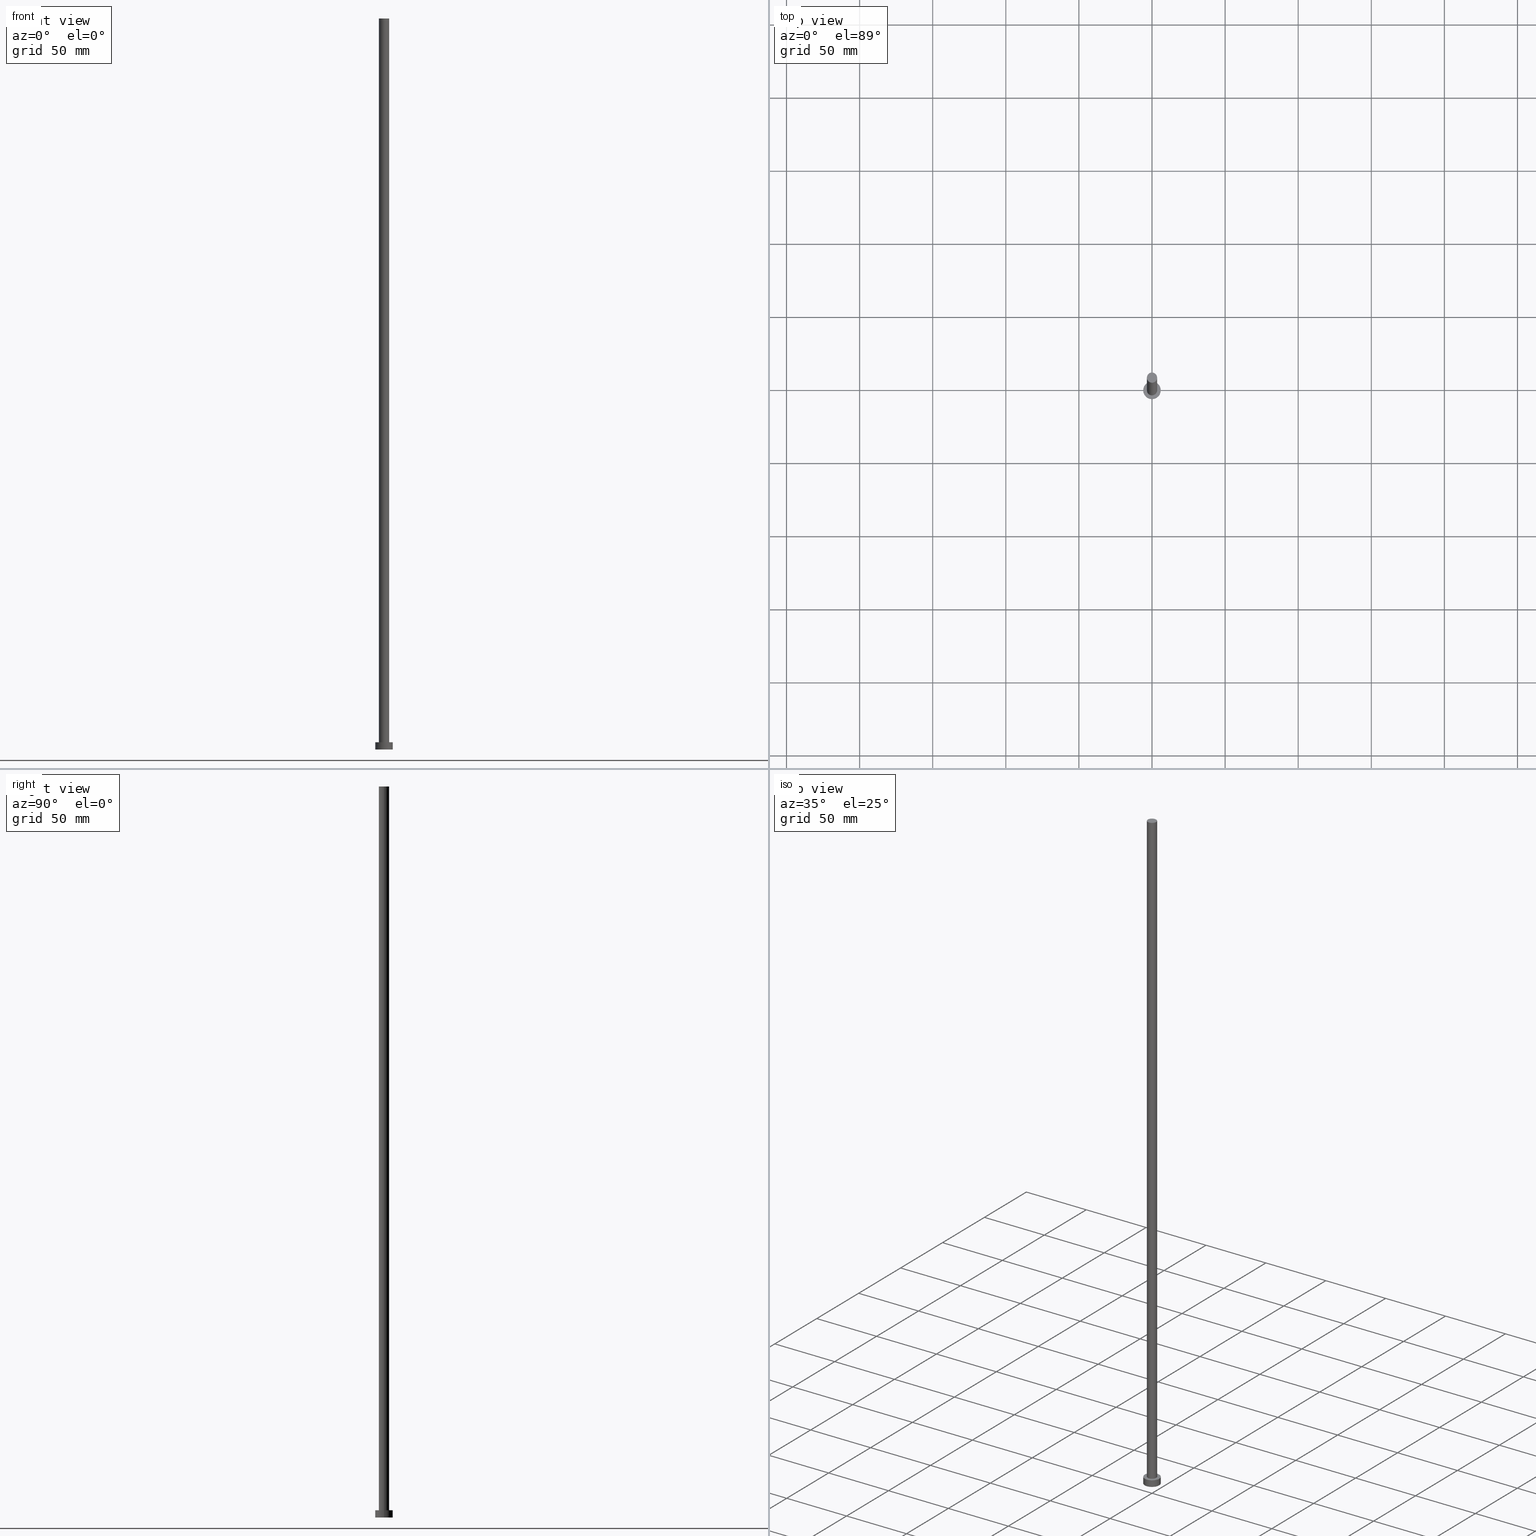
[diagram: canonical four-view strip — front | top / right | iso, engineering-drawing reading convention]
A machine part, canonical four-view strip (front | top / right | iso — engineering-drawing reading convention). The complete STEP part file that produces these views, byte-faithful:
ISO-10303-21;
HEADER;
FILE_DESCRIPTION (( 'STEP AP203' ),
    '1' );
FILE_NAME ('3daa.STEP',
    '2023-02-13T14:48:27',
    ( '' ),
    ( '' ),
    'SwSTEP 2.0',
    'SolidWorks 2019',
    '' );
FILE_SCHEMA (( 'CONFIG_CONTROL_DESIGN' ));
ENDSEC;

DATA;
#1 = ORIENTED_EDGE ( 'NONE', *, *, #191, .T. ) ;
#2 = CC_DESIGN_DATE_AND_TIME_ASSIGNMENT ( #100, #175, ( #127 ) ) ;
#3 = CIRCLE ( 'NONE', #196, 3.500000000000000000 ) ;
#4 = FACE_OUTER_BOUND ( 'NONE', #165, .T. ) ;
#5 = APPROVAL_ROLE ( '' ) ;
#6 = CARTESIAN_POINT ( 'NONE',  ( 6.000000000000000888, 7.347880794884120722E-16, 5.000000000000000000 ) ) ;
#7 = ORIENTED_EDGE ( 'NONE', *, *, #174, .F. ) ;
#8 = DIRECTION ( 'NONE',  ( 0.000000000000000000, 0.000000000000000000, 1.000000000000000000 ) ) ;
#9 = ADVANCED_FACE ( 'NONE', ( #81 ), #13, .F. ) ;
#10 = CALENDAR_DATE ( 2023, 13, 2 ) ;
#11 = VERTEX_POINT ( 'NONE', #60 ) ;
#12 = EDGE_CURVE ( 'NONE', #11, #148, #248, .T. ) ;
#13 = PLANE ( 'NONE',  #48 ) ;
#14 = PRODUCT_DEFINITION_FORMATION_WITH_SPECIFIED_SOURCE ( 'LIBOVOLN�', '', #76, .NOT_KNOWN. ) ;
#15 = ORIENTED_EDGE ( 'NONE', *, *, #177, .T. ) ;
#16 = APPROVAL_ROLE ( '' ) ;
#17 = DIRECTION ( 'NONE',  ( 1.000000000000000000, 0.000000000000000000, -0.000000000000000000 ) ) ;
#18 = PLANE ( 'NONE',  #42 ) ;
#19 = PERSON_AND_ORGANIZATION ( #101, #130 ) ;
#20 = LOCAL_TIME ( 15, 48, 27.00000000000000000, #82 ) ;
#21 = DIRECTION ( 'NONE',  ( 0.000000000000000000, 0.000000000000000000, 1.000000000000000000 ) ) ;
#22 = EDGE_CURVE ( 'NONE', #189, #116, #236, .T. ) ;
#23 = DIRECTION ( 'NONE',  ( 1.000000000000000000, 0.000000000000000000, 0.000000000000000000 ) ) ;
#24 = ORIENTED_EDGE ( 'NONE', *, *, #44, .F. ) ;
#25 = EDGE_CURVE ( 'NONE', #116, #43, #211, .T. ) ;
#26 = CARTESIAN_POINT ( 'NONE',  ( 0.000000000000000000, 0.000000000000000000, 500.0000000000000000 ) ) ;
#27 = PERSON_AND_ORGANIZATION ( #101, #130 ) ;
#28 = CIRCLE ( 'NONE', #157, 6.000000000000000888 ) ;
#29 = DIRECTION ( 'NONE',  ( -0.000000000000000000, -0.000000000000000000, -1.000000000000000000 ) ) ;
#30 = ORIENTED_EDGE ( 'NONE', *, *, #12, .T. ) ;
#31 = DIRECTION ( 'NONE',  ( 0.000000000000000000, 0.000000000000000000, 1.000000000000000000 ) ) ;
#32 = ORIENTED_EDGE ( 'NONE', *, *, #229, .T. ) ;
#33 = CARTESIAN_POINT ( 'NONE',  ( 6.000000000000000888, 7.347880794884120722E-16, 5.000000000000000000 ) ) ;
#34 = ORIENTED_EDGE ( 'NONE', *, *, #119, .T. ) ;
#35 = APPROVAL_STATUS ( 'not_yet_approved' ) ;
#36 = DIRECTION ( 'NONE',  ( 1.000000000000000000, 0.000000000000000000, 0.000000000000000000 ) ) ;
#37 = PERSON_AND_ORGANIZATION_ROLE ( 'creator' ) ;
#38 = COORDINATED_UNIVERSAL_TIME_OFFSET ( 1, 0, .AHEAD. ) ;
#39 = PERSON_AND_ORGANIZATION ( #101, #130 ) ;
#40 = CC_DESIGN_PERSON_AND_ORGANIZATION_ASSIGNMENT ( #62, #250, ( #14 ) ) ;
#41 = DIRECTION ( 'NONE',  ( 0.000000000000000000, 0.000000000000000000, 1.000000000000000000 ) ) ;
#42 = AXIS2_PLACEMENT_3D ( 'NONE', #73, #126, #218 ) ;
#43 = VERTEX_POINT ( 'NONE', #86 ) ;
#44 = EDGE_CURVE ( 'NONE', #148, #112, #234, .T. ) ;
#45 = AXIS2_PLACEMENT_3D ( 'NONE', #102, #237, #99 ) ;
#46 = FACE_OUTER_BOUND ( 'NONE', #241, .T. ) ;
#47 = CARTESIAN_POINT ( 'NONE',  ( 0.000000000000000000, 0.000000000000000000, 0.000000000000000000 ) ) ;
#48 = AXIS2_PLACEMENT_3D ( 'NONE', #193, #231, #17 ) ;
#49 = DIRECTION ( 'NONE',  ( -0.000000000000000000, -0.000000000000000000, -1.000000000000000000 ) ) ;
#50 = ORIENTED_EDGE ( 'NONE', *, *, #69, .F. ) ;
#51 = CC_DESIGN_APPROVAL ( #87, ( #127 ) ) ;
#52 = DIRECTION ( 'NONE',  ( 1.000000000000000000, 0.000000000000000000, 0.000000000000000000 ) ) ;
#53 = PERSON_AND_ORGANIZATION_ROLE ( 'design_owner' ) ;
#54 = CARTESIAN_POINT ( 'NONE',  ( 0.000000000000000000, 0.000000000000000000, 500.0000000000000000 ) ) ;
#55 = ADVANCED_BREP_SHAPE_REPRESENTATION ( '3daa', ( #153, #207 ), #158 ) ;
#56 = VERTEX_POINT ( 'NONE', #162 ) ;
#57 = CARTESIAN_POINT ( 'NONE',  ( 0.000000000000000000, 0.000000000000000000, 5.000000000000000000 ) ) ;
#58 = VECTOR ( 'NONE', #29, 1000.000000000000000 ) ;
#59 = PERSON_AND_ORGANIZATION ( #101, #130 ) ;
#60 = CARTESIAN_POINT ( 'NONE',  ( 3.500000000000000000, 4.286263797015736595E-16, 500.0000000000000000 ) ) ;
#61 = APPLICATION_PROTOCOL_DEFINITION ( 'international standard', 'config_control_design', 1994, #215 ) ;
#62 = PERSON_AND_ORGANIZATION ( #101, #130 ) ;
#63 =( NAMED_UNIT ( * ) SI_UNIT ( $, .STERADIAN. ) SOLID_ANGLE_UNIT ( ) );
#64 = VECTOR ( 'NONE', #155, 1000.000000000000000 ) ;
#65 = CARTESIAN_POINT ( 'NONE',  ( 0.000000000000000000, 0.000000000000000000, 5.000000000000000000 ) ) ;
#66 = VECTOR ( 'NONE', #79, 1000.000000000000000 ) ;
#67 = APPROVAL_PERSON_ORGANIZATION ( #59, #87, #96 ) ;
#68 = DIRECTION ( 'NONE',  ( 1.000000000000000000, 0.000000000000000000, 0.000000000000000000 ) ) ;
#69 = EDGE_CURVE ( 'NONE', #197, #43, #28, .T. ) ;
#70 = DIRECTION ( 'NONE',  ( 0.000000000000000000, 0.000000000000000000, 1.000000000000000000 ) ) ;
#71 = DATE_AND_TIME ( #139, #20 ) ;
#72 = FACE_OUTER_BOUND ( 'NONE', #243, .T. ) ;
#73 = CARTESIAN_POINT ( 'NONE',  ( 0.000000000000000000, 0.000000000000000000, 500.0000000000000000 ) ) ;
#74 = ORIENTED_EDGE ( 'NONE', *, *, #174, .T. ) ;
#75 = ORIENTED_EDGE ( 'NONE', *, *, #22, .T. ) ;
#76 = PRODUCT ( '3daa', '3daa', '', ( #168 ) ) ;
#77 = DIRECTION ( 'NONE',  ( -0.000000000000000000, -0.000000000000000000, -1.000000000000000000 ) ) ;
#78 = ORIENTED_EDGE ( 'NONE', *, *, #177, .F. ) ;
#79 = DIRECTION ( 'NONE',  ( -0.000000000000000000, -0.000000000000000000, -1.000000000000000000 ) ) ;
#80 = DIRECTION ( 'NONE',  ( 0.000000000000000000, 0.000000000000000000, 1.000000000000000000 ) ) ;
#81 = FACE_OUTER_BOUND ( 'NONE', #88, .T. ) ;
#82 = COORDINATED_UNIVERSAL_TIME_OFFSET ( 1, 0, .AHEAD. ) ;
#83 = APPROVAL_DATE_TIME ( #233, #224 ) ;
#84 = APPROVAL_STATUS ( 'not_yet_approved' ) ;
#85 = CLOSED_SHELL ( 'NONE', ( #132, #254, #91, #170, #9, #210, #106 ) ) ;
#86 = CARTESIAN_POINT ( 'NONE',  ( -6.000000000000000888, 0.000000000000000000, 0.000000000000000000 ) ) ;
#87 = APPROVAL ( #35, 'NEUR�EN�' ) ;
#88 = EDGE_LOOP ( 'NONE', ( #78, #50 ) ) ;
#89 = CARTESIAN_POINT ( 'NONE',  ( 0.000000000000000000, 0.000000000000000000, 5.000000000000000000 ) ) ;
#90 = EDGE_LOOP ( 'NONE', ( #192, #7, #108, #15 ) ) ;
#91 = ADVANCED_FACE ( 'NONE', ( #143 ), #199, .T. ) ;
#92 = DIRECTION ( 'NONE',  ( 0.000000000000000000, 0.000000000000000000, 1.000000000000000000 ) ) ;
#93 = DIRECTION ( 'NONE',  ( 1.000000000000000000, 0.000000000000000000, 0.000000000000000000 ) ) ;
#94 = DATE_AND_TIME ( #10, #222 ) ;
#95 = ORIENTED_EDGE ( 'NONE', *, *, #229, .F. ) ;
#96 = APPROVAL_ROLE ( '' ) ;
#97 = LOCAL_TIME ( 15, 48, 27.00000000000000000, #105 ) ;
#98 = CALENDAR_DATE ( 2023, 13, 2 ) ;
#99 = DIRECTION ( 'NONE',  ( -1.000000000000000000, 0.000000000000000000, 0.000000000000000000 ) ) ;
#100 = DATE_AND_TIME ( #109, #252 ) ;
#101 = PERSON ( 'NEUR�EN�', 'NEUR�EN�', 'NEUR�EN�', ('NEUR�EN�'), ('NEUR�EN�'), ('NEUR�EN�') ) ;
#102 = CARTESIAN_POINT ( 'NONE',  ( 0.000000000000000000, 0.000000000000000000, 5.000000000000000000 ) ) ;
#103 = ORIENTED_EDGE ( 'NONE', *, *, #25, .F. ) ;
#104 = DIRECTION ( 'NONE',  ( 1.000000000000000000, 0.000000000000000000, 0.000000000000000000 ) ) ;
#105 = COORDINATED_UNIVERSAL_TIME_OFFSET ( 1, 0, .AHEAD. ) ;
#106 = ADVANCED_FACE ( 'NONE', ( #72 ), #18, .T. ) ;
#107 = CARTESIAN_POINT ( 'NONE',  ( 0.000000000000000000, 0.000000000000000000, 5.000000000000000000 ) ) ;
#108 = ORIENTED_EDGE ( 'NONE', *, *, #25, .T. ) ;
#109 = CALENDAR_DATE ( 2023, 13, 2 ) ;
#110 = DIRECTION ( 'NONE',  ( 1.000000000000000000, 0.000000000000000000, 0.000000000000000000 ) ) ;
#111 = LINE ( 'NONE', #6, #66 ) ;
#112 = VERTEX_POINT ( 'NONE', #123 ) ;
#113 = DIRECTION ( 'NONE',  ( 1.000000000000000000, 0.000000000000000000, 0.000000000000000000 ) ) ;
#114 = COORDINATED_UNIVERSAL_TIME_OFFSET ( 1, 0, .AHEAD. ) ;
#115 = CYLINDRICAL_SURFACE ( 'NONE', #217, 3.500000000000000000 ) ;
#116 = VERTEX_POINT ( 'NONE', #205 ) ;
#117 = COORDINATED_UNIVERSAL_TIME_OFFSET ( 1, 0, .AHEAD. ) ;
#118 = PERSON_AND_ORGANIZATION_ROLE ( 'design_supplier' ) ;
#119 = EDGE_CURVE ( 'NONE', #56, #112, #171, .T. ) ;
#120 = APPLICATION_CONTEXT ( 'configuration controlled 3d designs of mechanical parts and assemblies' ) ;
#121 = VECTOR ( 'NONE', #255, 1000.000000000000000 ) ;
#122 = AXIS2_PLACEMENT_3D ( 'NONE', #26, #188, #104 ) ;
#123 = CARTESIAN_POINT ( 'NONE',  ( -3.500000000000000000, 0.000000000000000000, 5.000000000000000000 ) ) ;
#124 = EDGE_CURVE ( 'NONE', #112, #148, #3, .T. ) ;
#125 = CIRCLE ( 'NONE', #206, 3.500000000000000000 ) ;
#126 = DIRECTION ( 'NONE',  ( 0.000000000000000000, 0.000000000000000000, 1.000000000000000000 ) ) ;
#127 = PRODUCT_DEFINITION ( 'NEZN�M�', '', #14, #179 ) ;
#128 = CARTESIAN_POINT ( 'NONE',  ( 0.000000000000000000, 0.000000000000000000, 5.000000000000000000 ) ) ;
#129 = DIRECTION ( 'NONE',  ( 0.000000000000000000, 0.000000000000000000, 1.000000000000000000 ) ) ;
#130 = ORGANIZATION ( 'NEUR�EN�', 'NEUR�EN�', '' ) ;
#131 =( LENGTH_UNIT ( ) NAMED_UNIT ( * ) SI_UNIT ( .MILLI., .METRE. ) );
#132 = ADVANCED_FACE ( 'NONE', ( #208 ), #115, .T. ) ;
#133 = ORIENTED_EDGE ( 'NONE', *, *, #12, .F. ) ;
#134 = AXIS2_PLACEMENT_3D ( 'NONE', #142, #21, #23 ) ;
#135 = PERSON_AND_ORGANIZATION ( #101, #130 ) ;
#136 = CARTESIAN_POINT ( 'NONE',  ( 3.500000000000000000, 4.286263797015736595E-16, 500.0000000000000000 ) ) ;
#137 = CC_DESIGN_PERSON_AND_ORGANIZATION_ASSIGNMENT ( #227, #53, ( #76 ) ) ;
#138 = EDGE_LOOP ( 'NONE', ( #74, #75 ) ) ;
#139 = CALENDAR_DATE ( 2023, 13, 2 ) ;
#140 = LOCAL_TIME ( 15, 48, 27.00000000000000000, #38 ) ;
#141 = CARTESIAN_POINT ( 'NONE',  ( -6.000000000000000888, 0.000000000000000000, 5.000000000000000000 ) ) ;
#142 = CARTESIAN_POINT ( 'NONE',  ( 0.000000000000000000, 0.000000000000000000, 5.000000000000000000 ) ) ;
#143 = FACE_OUTER_BOUND ( 'NONE', #90, .T. ) ;
#144 = CC_DESIGN_APPROVAL ( #224, ( #14 ) ) ;
#145 = CIRCLE ( 'NONE', #122, 3.500000000000000000 ) ;
#146 = CC_DESIGN_APPROVAL ( #198, ( #161 ) ) ;
#147 = CARTESIAN_POINT ( 'NONE',  ( 0.000000000000000000, 0.000000000000000000, 500.0000000000000000 ) ) ;
#148 = VERTEX_POINT ( 'NONE', #242 ) ;
#149 = APPLICATION_PROTOCOL_DEFINITION ( 'international standard', 'config_control_design', 1994, #120 ) ;
#150 = FACE_OUTER_BOUND ( 'NONE', #138, .T. ) ;
#151 = DIRECTION ( 'NONE',  ( -1.000000000000000000, 0.000000000000000000, 0.000000000000000000 ) ) ;
#152 = CARTESIAN_POINT ( 'NONE',  ( 0.000000000000000000, 0.000000000000000000, 500.0000000000000000 ) ) ;
#153 = MANIFOLD_SOLID_BREP ( 'P�idat vysunut�m3', #85 ) ;
#154 = CC_DESIGN_SECURITY_CLASSIFICATION ( #161, ( #14 ) ) ;
#155 = DIRECTION ( 'NONE',  ( -0.000000000000000000, -0.000000000000000000, -1.000000000000000000 ) ) ;
#156 = PERSON_AND_ORGANIZATION ( #101, #130 ) ;
#157 = AXIS2_PLACEMENT_3D ( 'NONE', #180, #70, #253 ) ;
#158 =( GEOMETRIC_REPRESENTATION_CONTEXT ( 3 ) GLOBAL_UNCERTAINTY_ASSIGNED_CONTEXT ( ( #194 ) ) GLOBAL_UNIT_ASSIGNED_CONTEXT ( ( #131, #195, #63 ) ) REPRESENTATION_CONTEXT ( 'NONE', 'WORKASPACE' ) );
#159 = APPROVAL_DATE_TIME ( #160, #198 ) ;
#160 = DATE_AND_TIME ( #185, #97 ) ;
#161 = SECURITY_CLASSIFICATION ( '', '', #212 ) ;
#162 = CARTESIAN_POINT ( 'NONE',  ( -3.500000000000000000, 0.000000000000000000, 500.0000000000000000 ) ) ;
#163 = CYLINDRICAL_SURFACE ( 'NONE', #238, 3.500000000000000000 ) ;
#164 = AXIS2_PLACEMENT_3D ( 'NONE', #128, #77, #151 ) ;
#165 = EDGE_LOOP ( 'NONE', ( #133, #251, #34, #225 ) ) ;
#166 = APPROVAL_PERSON_ORGANIZATION ( #27, #198, #5 ) ;
#167 = CYLINDRICAL_SURFACE ( 'NONE', #164, 6.000000000000000888 ) ;
#168 = MECHANICAL_CONTEXT ( 'NONE', #120, 'mechanical' ) ;
#169 = PLANE ( 'NONE',  #203 ) ;
#170 = ADVANCED_FACE ( 'NONE', ( #240, #150 ), #169, .T. ) ;
#171 = LINE ( 'NONE', #228, #58 ) ;
#172 = AXIS2_PLACEMENT_3D ( 'NONE', #190, #92, #36 ) ;
#173 = APPROVAL_DATE_TIME ( #94, #87 ) ;
#174 = EDGE_CURVE ( 'NONE', #116, #189, #220, .T. ) ;
#175 = DATE_TIME_ROLE ( 'creation_date' ) ;
#176 = PERSON_AND_ORGANIZATION_ROLE ( 'classification_officer' ) ;
#177 = EDGE_CURVE ( 'NONE', #43, #197, #232, .T. ) ;
#178 = AXIS2_PLACEMENT_3D ( 'NONE', #57, #201, #113 ) ;
#179 = DESIGN_CONTEXT ( 'detailed design', #215, 'design' ) ;
#180 = CARTESIAN_POINT ( 'NONE',  ( 0.000000000000000000, 0.000000000000000000, 0.000000000000000000 ) ) ;
#181 = SHAPE_DEFINITION_REPRESENTATION ( #216, #55 ) ;
#182 = ORIENTED_EDGE ( 'NONE', *, *, #219, .T. ) ;
#183 = CC_DESIGN_PERSON_AND_ORGANIZATION_ASSIGNMENT ( #135, #37, ( #127 ) ) ;
#184 = CARTESIAN_POINT ( 'NONE',  ( 6.000000000000000888, 7.347880794884120722E-16, 0.000000000000000000 ) ) ;
#185 = CALENDAR_DATE ( 2023, 13, 2 ) ;
#186 = DIRECTION ( 'NONE',  ( -1.000000000000000000, 0.000000000000000000, 0.000000000000000000 ) ) ;
#187 = EDGE_LOOP ( 'NONE', ( #95, #30, #200, #249 ) ) ;
#188 = DIRECTION ( 'NONE',  ( 0.000000000000000000, 0.000000000000000000, 1.000000000000000000 ) ) ;
#189 = VERTEX_POINT ( 'NONE', #33 ) ;
#190 = CARTESIAN_POINT ( 'NONE',  ( 0.000000000000000000, 0.000000000000000000, 0.000000000000000000 ) ) ;
#191 = EDGE_CURVE ( 'NONE', #56, #11, #145, .T. ) ;
#192 = ORIENTED_EDGE ( 'NONE', *, *, #219, .F. ) ;
#193 = CARTESIAN_POINT ( 'NONE',  ( 0.000000000000000000, 0.000000000000000000, 0.000000000000000000 ) ) ;
#194 = UNCERTAINTY_MEASURE_WITH_UNIT (LENGTH_MEASURE( 1.000000000000000082E-05 ), #131, 'distance_accuracy_value', 'NONE');
#195 =( NAMED_UNIT ( * ) PLANE_ANGLE_UNIT ( ) SI_UNIT ( $, .RADIAN. ) );
#196 = AXIS2_PLACEMENT_3D ( 'NONE', #107, #80, #93 ) ;
#197 = VERTEX_POINT ( 'NONE', #184 ) ;
#198 = APPROVAL ( #84, 'NEUR�EN�' ) ;
#199 = CYLINDRICAL_SURFACE ( 'NONE', #45, 6.000000000000000888 ) ;
#200 = ORIENTED_EDGE ( 'NONE', *, *, #44, .T. ) ;
#201 = DIRECTION ( 'NONE',  ( 0.000000000000000000, 0.000000000000000000, 1.000000000000000000 ) ) ;
#202 = DATE_TIME_ROLE ( 'classification_date' ) ;
#203 = AXIS2_PLACEMENT_3D ( 'NONE', #89, #31, #230 ) ;
#204 = PRODUCT_RELATED_PRODUCT_CATEGORY ( 'detail', '', ( #76 ) ) ;
#205 = CARTESIAN_POINT ( 'NONE',  ( -6.000000000000000888, 0.000000000000000000, 5.000000000000000000 ) ) ;
#206 = AXIS2_PLACEMENT_3D ( 'NONE', #147, #8, #52 ) ;
#207 = AXIS2_PLACEMENT_3D ( 'NONE', #47, #129, #110 ) ;
#208 = FACE_OUTER_BOUND ( 'NONE', #187, .T. ) ;
#209 = DIRECTION ( 'NONE',  ( -0.000000000000000000, -0.000000000000000000, -1.000000000000000000 ) ) ;
#210 = ADVANCED_FACE ( 'NONE', ( #4 ), #163, .T. ) ;
#211 = LINE ( 'NONE', #141, #121 ) ;
#212 = SECURITY_CLASSIFICATION_LEVEL ( 'unclassified' ) ;
#213 = AXIS2_PLACEMENT_3D ( 'NONE', #65, #41, #68 ) ;
#214 = EDGE_LOOP ( 'NONE', ( #223, #24 ) ) ;
#215 = APPLICATION_CONTEXT ( 'configuration controlled 3d designs of mechanical parts and assemblies' ) ;
#216 = PRODUCT_DEFINITION_SHAPE ( 'NONE', 'NONE',  #127 ) ;
#217 = AXIS2_PLACEMENT_3D ( 'NONE', #152, #209, #186 ) ;
#218 = DIRECTION ( 'NONE',  ( 1.000000000000000000, 0.000000000000000000, -0.000000000000000000 ) ) ;
#219 = EDGE_CURVE ( 'NONE', #189, #197, #111, .T. ) ;
#220 = CIRCLE ( 'NONE', #178, 6.000000000000000888 ) ;
#221 = ORIENTED_EDGE ( 'NONE', *, *, #69, .T. ) ;
#222 = LOCAL_TIME ( 15, 48, 27.00000000000000000, #114 ) ;
#223 = ORIENTED_EDGE ( 'NONE', *, *, #124, .F. ) ;
#224 = APPROVAL ( #247, 'NEUR�EN�' ) ;
#225 = ORIENTED_EDGE ( 'NONE', *, *, #124, .T. ) ;
#226 = APPROVAL_PERSON_ORGANIZATION ( #156, #224, #16 ) ;
#227 = PERSON_AND_ORGANIZATION ( #101, #130 ) ;
#228 = CARTESIAN_POINT ( 'NONE',  ( -3.500000000000000000, 0.000000000000000000, 500.0000000000000000 ) ) ;
#229 = EDGE_CURVE ( 'NONE', #11, #56, #125, .T. ) ;
#230 = DIRECTION ( 'NONE',  ( 1.000000000000000000, 0.000000000000000000, -0.000000000000000000 ) ) ;
#231 = DIRECTION ( 'NONE',  ( 0.000000000000000000, 0.000000000000000000, 1.000000000000000000 ) ) ;
#232 = CIRCLE ( 'NONE', #172, 6.000000000000000888 ) ;
#233 = DATE_AND_TIME ( #98, #140 ) ;
#234 = CIRCLE ( 'NONE', #134, 3.500000000000000000 ) ;
#235 = CC_DESIGN_PERSON_AND_ORGANIZATION_ASSIGNMENT ( #19, #118, ( #14 ) ) ;
#236 = CIRCLE ( 'NONE', #213, 6.000000000000000888 ) ;
#237 = DIRECTION ( 'NONE',  ( -0.000000000000000000, -0.000000000000000000, -1.000000000000000000 ) ) ;
#238 = AXIS2_PLACEMENT_3D ( 'NONE', #54, #49, #239 ) ;
#239 = DIRECTION ( 'NONE',  ( -1.000000000000000000, 0.000000000000000000, 0.000000000000000000 ) ) ;
#240 = FACE_BOUND ( 'NONE', #214, .T. ) ;
#241 = EDGE_LOOP ( 'NONE', ( #244, #182, #221, #103 ) ) ;
#242 = CARTESIAN_POINT ( 'NONE',  ( 3.500000000000000000, 4.286263797015736595E-16, 5.000000000000000000 ) ) ;
#243 = EDGE_LOOP ( 'NONE', ( #1, #32 ) ) ;
#244 = ORIENTED_EDGE ( 'NONE', *, *, #22, .F. ) ;
#245 = CC_DESIGN_PERSON_AND_ORGANIZATION_ASSIGNMENT ( #39, #176, ( #161 ) ) ;
#246 = CC_DESIGN_DATE_AND_TIME_ASSIGNMENT ( #71, #202, ( #161 ) ) ;
#247 = APPROVAL_STATUS ( 'not_yet_approved' ) ;
#248 = LINE ( 'NONE', #136, #64 ) ;
#249 = ORIENTED_EDGE ( 'NONE', *, *, #119, .F. ) ;
#250 = PERSON_AND_ORGANIZATION_ROLE ( 'creator' ) ;
#251 = ORIENTED_EDGE ( 'NONE', *, *, #191, .F. ) ;
#252 = LOCAL_TIME ( 15, 48, 27.00000000000000000, #117 ) ;
#253 = DIRECTION ( 'NONE',  ( 1.000000000000000000, 0.000000000000000000, 0.000000000000000000 ) ) ;
#254 = ADVANCED_FACE ( 'NONE', ( #46 ), #167, .T. ) ;
#255 = DIRECTION ( 'NONE',  ( -0.000000000000000000, -0.000000000000000000, -1.000000000000000000 ) ) ;
ENDSEC;
END-ISO-10303-21;
